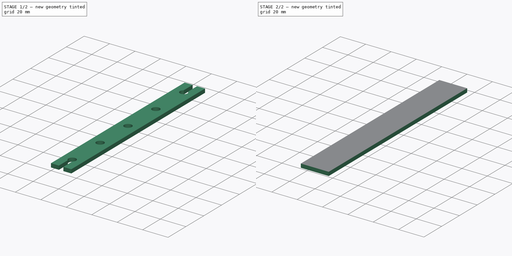
[diagram: build sequence overview — one tinted view per stage of 2, left to right]
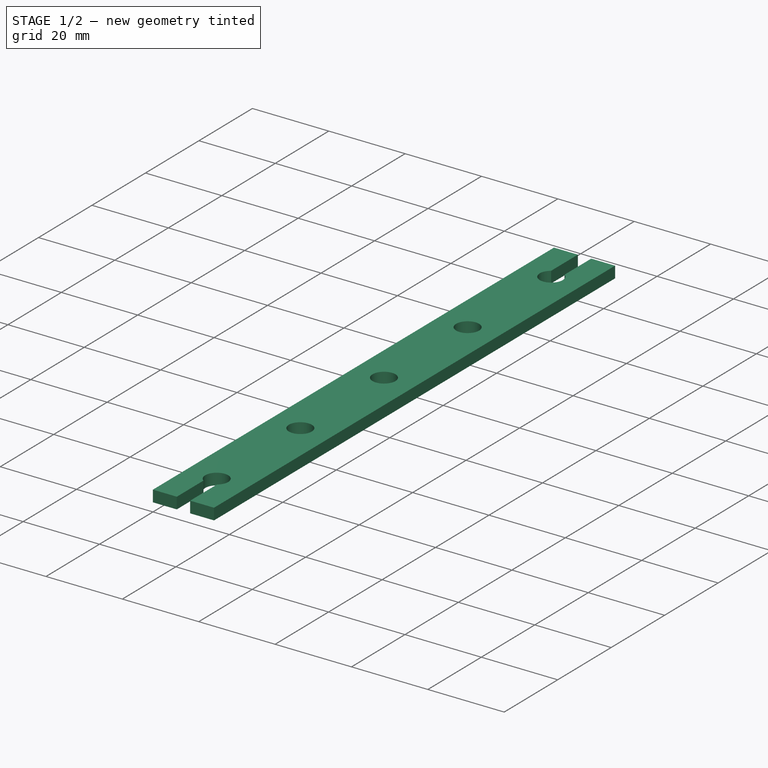
[diagram: stage 1 of 2 — iso view after this stage's code; geometry added in this stage tinted green]
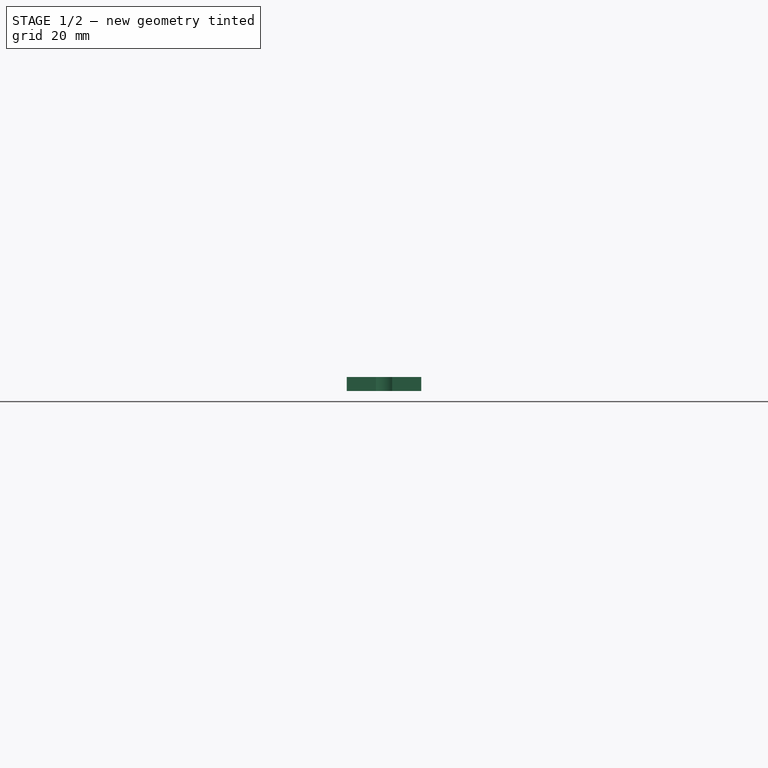
[diagram: stage 1 of 2 — front view after this stage's code; geometry added in this stage tinted green]
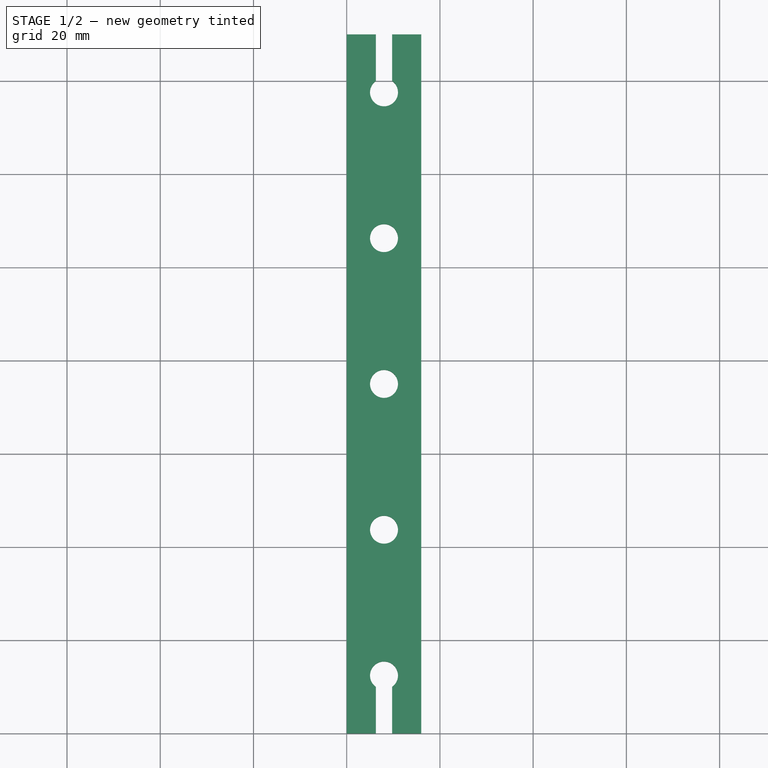
[diagram: stage 1 of 2 — top view after this stage's code; geometry added in this stage tinted green]
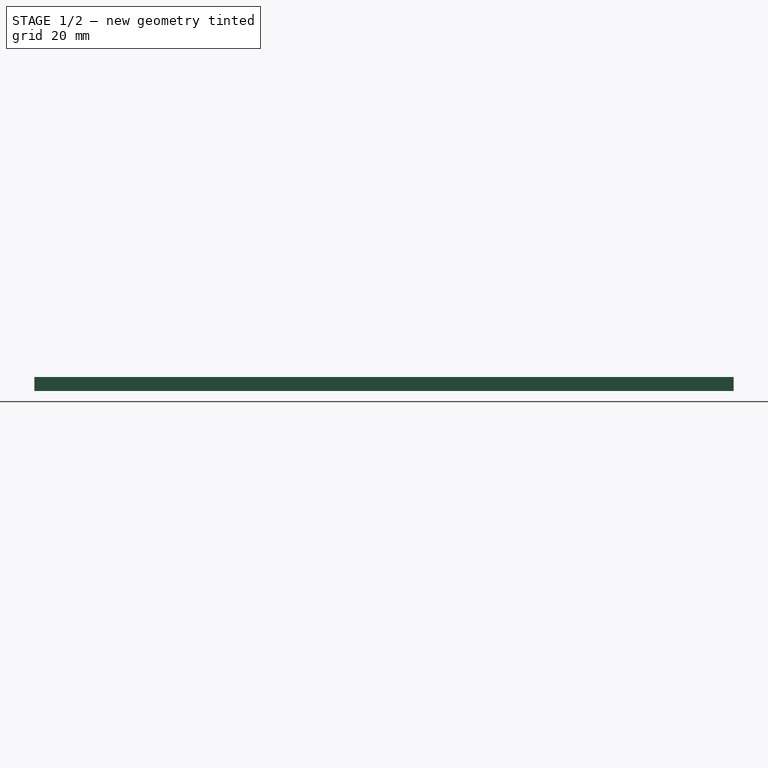
[diagram: stage 1 of 2 — right view after this stage's code; geometry added in this stage tinted green]
FCSTD DOCUMENT  (FreeCAD 0.18.4R)
Label: tram_bar
License: All rights reserved
LicenseURL: http://en.wikipedia.org/wiki/All_rights_reserved
objects: Path::FeaturePython×5, Part::FeaturePython×3, Sketcher::SketchObject×1, PartDesign::Pad×1, PartDesign::Body×1, App::Part×1, App::FeaturePython×1, App::DocumentObjectGroup×1, Path::FeatureCompoundPython×1
note: 9 computed .brp shape members not serialized (recipe doc carries the construction recipe); baked Part::Feature solids carry a one-line shape summary decoded from their .brp

FEATURE [Sketcher::SketchObject] Sketch
  MapMode = 5
  Support = -> [XY_Plane]
  sketch-geometry (15):
    g0: LineSegment StartX=-75 StartY=8 StartZ=0 EndX=75 EndY=8 EndZ=0
    g1: LineSegment StartX=75 StartY=8 StartZ=0 EndX=75 EndY=1.75 EndZ=0
    g2: LineSegment StartX=75 StartY=1.75 StartZ=0 EndX=65 EndY=1.75 EndZ=0
    g3: LineSegment StartX=65 StartY=-1.75 StartZ=0 EndX=75 EndY=-1.75 EndZ=0
    g4: LineSegment StartX=75 StartY=-1.75 StartZ=0 EndX=75 EndY=-8 EndZ=0
    g5: LineSegment StartX=75 StartY=-8 StartZ=0 EndX=-75 EndY=-8 EndZ=0
    g6: LineSegment StartX=-75 StartY=-8 StartZ=0 EndX=-75 EndY=-1.75 EndZ=0
    g7: LineSegment StartX=-75 StartY=-1.75 StartZ=0 EndX=-65 EndY=-1.75 EndZ=0
    g8: LineSegment StartX=-65 StartY=1.75 StartZ=0 EndX=-75 EndY=1.75 EndZ=0
    g9: LineSegment StartX=-75 StartY=1.75 StartZ=0 EndX=-75 EndY=8 EndZ=0
    g10: ArcOfCircle CenterX=-62.5633 CenterY=0 CenterZ=0 NormalX=0 NormalY=0 NormalZ=1 AngleXU=0 Radius=3 StartAngle=3.76442 EndAngle=8.80195
    g11: ArcOfCircle CenterX=62.5633 CenterY=0 CenterZ=0 NormalX=0 NormalY=0 NormalZ=1 AngleXU=0 Radius=3 StartAngle=0.622827 EndAngle=5.66036
    g12: Circle CenterX=-31.2817 CenterY=0 CenterZ=0 NormalX=0 NormalY=0 NormalZ=1 AngleXU=0 Radius=3
    g13: Circle CenterX=0 CenterY=0 CenterZ=0 NormalX=0 NormalY=0 NormalZ=1 AngleXU=0 Radius=3
    g14: Circle CenterX=31.2817 CenterY=0 CenterZ=0 NormalX=0 NormalY=0 NormalZ=1 AngleXU=0 Radius=3
  constraints (40):
    c: Coincident(g0,g1)
    c: Vertical(g1)
    c: Coincident(g1,g2)
    c: Horizontal(g2)
    c: Coincident(g3,g4)
    c: Vertical(g4)
    c: Coincident(g4,g5)
    c: Coincident(g5,g6)
    c: Vertical(g6)
    c: Coincident(g6,g7)
    c: Coincident(g8,g9)
    c: Coincident(g9,g0)
    c: Vertical(g9)
    c: Coincident(g10,g8)
    c: Coincident(g10,g7)
    c: Coincident(g11,g2)
    c: Coincident(g11,g3)
    c: Equal(g11,g10)
    c: Horizontal(g3)
    c: Horizontal(g8)
    c: Horizontal(g7)
    c: Symmetric(g0,g0,g-2)
    c: Symmetric(g0,g4,g-1)
    c: Symmetric(g0,g5,g-1)
    c: Equal(g9,g6)
    c: Equal(g1,g4)
    c: PointOnObject(g11,g-1)
    c: Symmetric(g11,g10,g-2)
    c: Equal(g1,g9)
    c: Coincident(g13,g-1)
    c: Equal(g12,g13)
    c: Equal(g12,g14)
    c: Symmetric(g13,g10,g12)
    c: Symmetric(g13,g11,g14)
    c: Radius(g11) = 3
    c: Radius(g12) = 3
    c: DistanceX(g2,g2) = 10
    c: DistanceY(g4,g0) = 16
    c: DistanceX(g0,g0) = 150
    c: DistanceY(g3,g1) = 3.5
FEATURE [PartDesign::Pad] Pad
  Length = 3
  Length2 = 100
  Profile = -> Sketch
  Type = 0
FEATURE [PartDesign::Body] Body
  Group = -> [Sketch,Pad]
  Origin = -> Origin
  Tip = -> Pad
FEATURE [App::Part] Part
  Group = -> [Body]
  Origin = -> Origin001
FEATURE [Part::FeaturePython] Clone  label="Body001"  # Draft clone (typed FeaturePython)
  AttacherType = Attacher::AttachEngine3D
  Fuse = false
  Objects = -> [Body]
  Placement = pos=(8,75,0) rot=(0,0,1;1.5708rad)
  Scale = (1,1,1)
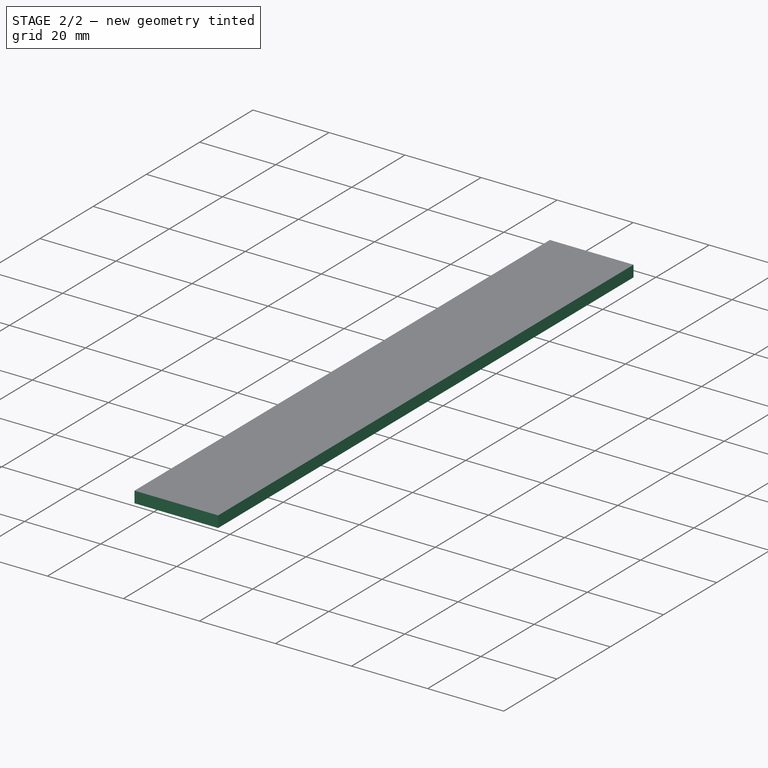
[diagram: stage 2 of 2 — iso view after this stage's code; geometry added in this stage tinted green]
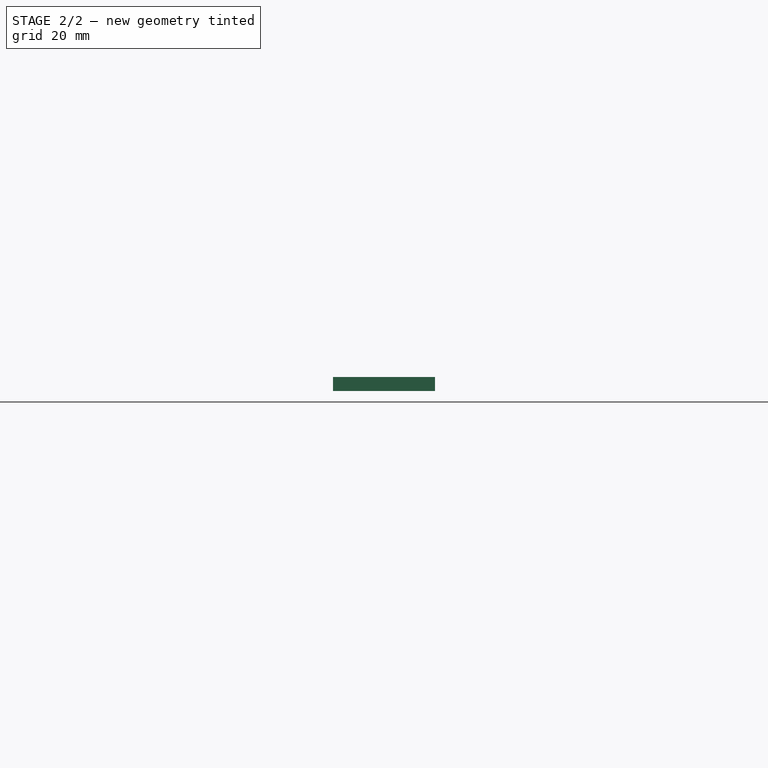
[diagram: stage 2 of 2 — front view after this stage's code; geometry added in this stage tinted green]
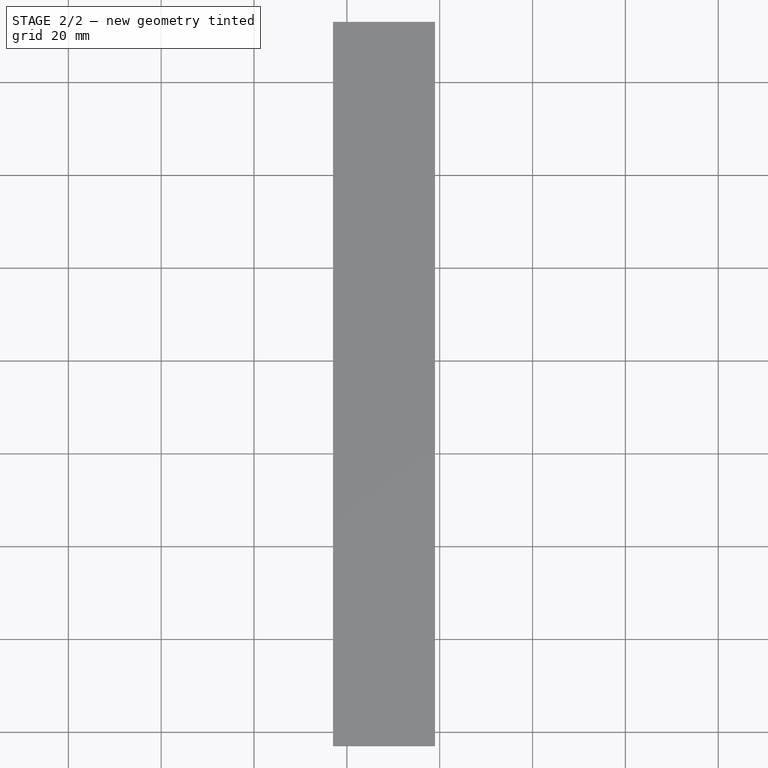
[diagram: stage 2 of 2 — top view after this stage's code; geometry added in this stage tinted green]
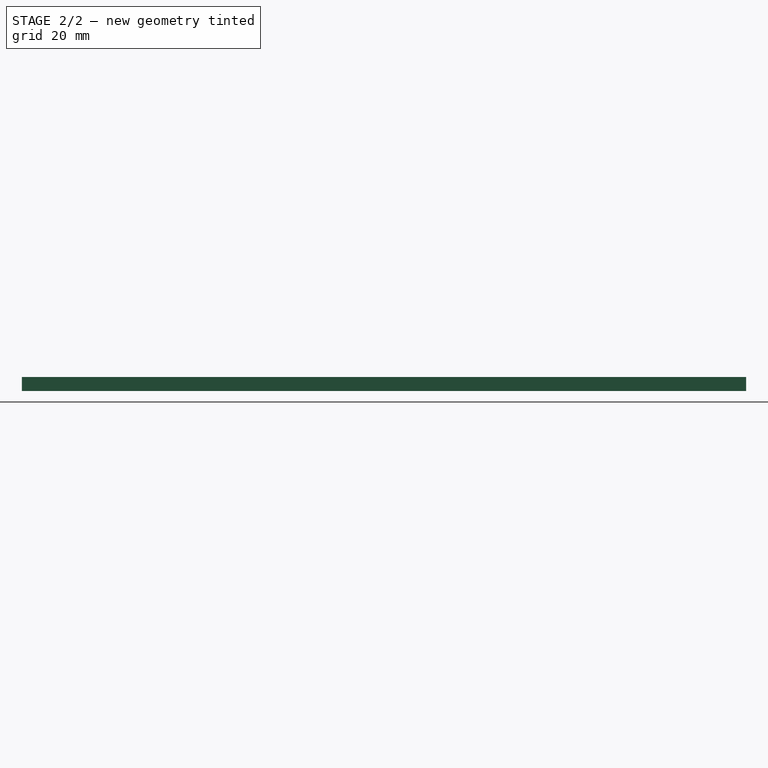
[diagram: stage 2 of 2 — right view after this stage's code; geometry added in this stage tinted green]
FEATURE [App::FeaturePython] SetupSheet  # Path/CAM operation (typed FeaturePython)
  ClearanceHeightExpression = OpStockZMax+SetupSheet.ClearanceHeightOffset
  ClearanceHeightOffset = 5
  FinalDepthExpression = -0.2mm
  HorizRapid = 33.33
  SafeHeightExpression = OpStockZMax+SetupSheet.SafeHeightOffset
  SafeHeightOffset = 3
  StartDepthExpression = 3.2mm
  StepDownExpression = 0.3
  VertRapid = 33.33
FEATURE [Part::FeaturePython] Clone001  label="Model-Body001"  # Draft clone (typed FeaturePython)
  AttacherType = Attacher::AttachEngine3D
  Fuse = false
  Objects = -> [Clone]
  PathResource = Model
  Placement = pos=(8,75,0) rot=(0,0,1;1.5708rad)
  Scale = (1,1,1)
FEATURE [App::DocumentObjectGroup] Model
  Group = -> [Clone001]
FEATURE [Part::FeaturePython] Stock  # WARN: FeaturePython — macro-defined, semantics opaque (R4)
  Base = -> Model
  ExtXneg = 3
  ExtXpos = 3
  ExtYneg = 3
  ExtYpos = 3
  ExtZneg = 0
  ExtZpos = 0
  Placement = pos=(-1.8e-15,0,0) rot=(0,0,1;0rad)
  StockType = FromBase
FEATURE [Path::FeaturePython] T3__AluminiumMill  label="T3: AluminiumMill"  # Path/CAM operation (typed FeaturePython)
  HorizFeed = 13.3333
  HorizRapid = 0
  SpindleDir = 0
  SpindleSpeed = 17000
  ToolNumber = 3
  VertFeed = 13.33
  VertRapid = 33.33
  expr: HorizFeed = 800mm / min
  expr: VertRapid = SetupSheet.VertRapid
FEATURE [Path::FeaturePython] Profile_Faces  # Path/CAM operation (typed FeaturePython)
  Active = true
  AreaParams:
    Tolerance = 1e-07
    FitArcs = True
    Simplify = False
    CleanDistance = 0.0
    Accuracy = 0.01
    Unit = 1.0
    MinArcPoints = 4
    MaxArcPoints = 100
    ClipperScale = 10000000.0
    Fill = 0
    Coplanar = 0
    Reorient = True
    Outline = False
    Explode = False
    OpenMode = 0
    Deflection = 0.01
    SubjectFill = 0
    ClipFill = 0
    Offset = 1.5
    ExtraPass = 0
    Stepover = 0.0
    LastStepover = 0.0
    JoinType = 0
    EndType = 0
    MiterLimit = 2.0
    RoundPrecision = 0.0
    PocketMode = 0
    ToolRadius = 1.0
    PocketExtraOffset = 0.0
    PocketStepover = 0.0
    PocketLastStepover = 0.0
    FromCenter = False
    Angle = 45.0
    AngleShift = 0.0
    Shift = 0.0
    Thicken = False
    SectionCount = -1
    Stepdown = 1.0
    SectionOffset = 0.0
    SectionTolerance = 1e-06
    SectionMode = 2
    Project = False
  Base = -> [Clone001]
  ClearanceHeight = 8
  Direction = 1
  FinalDepth = -0.2
  JoinType = 0
  MiterLimit = 0.1
  OffsetExtra = 0
  OpFinalDepth = 3
  OpStartDepth = 3.3
  OpStockZMax = 3
  OpStockZMin = 0
  OpToolDiameter = 3
  PathParams = {'orientation': 0, 'feedrate': 13.333333333333334, 'feedrate_v': 13.33, 'verbose': True, 'resume_height': 6.0, 'retraction': 8.0, 'return_end': True, 'preamble': False}
  SafeHeight = 6
  Side = 0
  StartDepth = 3.2
  StartPoint = (0,0,0)
  StepDown = 0.3
  ToolController = -> T3__AluminiumMill
  UseComp = true
  UseStartPoint = false
  processCircles = false
  processHoles = false
  processPerimeter = true
  expr: ClearanceHeight = OpStockZMax + SetupSheet.ClearanceHeightOffset
  expr: SafeHeight = OpStockZMax + SetupSheet.SafeHeightOffset
  expr: StepDown = 0.3
  expr: FinalDepth = -0.2mm
  expr: StartDepth = 3.2mm
FEATURE [Path::FeaturePython] TagDressup  # Path/CAM operation (typed FeaturePython)
  Angle = 45
  Base = -> Profile_Faces
  Disabled = [0,4]
  Height = 0.8
  Positions = (8) [(7.75,145,0),(-1.5,125,0),(-1.5,75,0),(-1.5,25,0),(8.25,5,0),(17.5,25,0),(17.5,75,0),(17.5,125,0)]
  Radius = 0
  SegmentationFactor = 50
  Width = 2
FEATURE [Path::FeaturePython] Profile_Faces001  # Path/CAM operation (typed FeaturePython)
  Active = true
  AreaParams:
    Tolerance = 1e-07
    FitArcs = True
    Simplify = False
    CleanDistance = 0.0
    Accuracy = 0.01
    Unit = 1.0
    MinArcPoints = 4
    MaxArcPoints = 100
    ClipperScale = 10000000.0
    Fill = 0
    Coplanar = 0
    Reorient = True
    Outline = False
    Explode = False
    OpenMode = 0
    Deflection = 0.01
    SubjectFill = 0
    ClipFill = 0
    Offset = -1.5
    ExtraPass = 0
    Stepover = 0.0
    LastStepover = 0.0
    JoinType = 0
    EndType = 0
    MiterLimit = 2.0
    RoundPrecision = 0.0
    PocketMode = 0
    ToolRadius = 1.0
    PocketExtraOffset = 0.0
    PocketStepover = 0.0
    PocketLastStepover = 0.0
    FromCenter = False
    Angle = 45.0
    AngleShift = 0.0
    Shift = 0.0
    Thicken = False
    SectionCount = -1
    Stepdown = 1.0
    SectionOffset = 0.0
    SectionTolerance = 1e-06
    SectionMode = 2
    Project = False
  Base = -> [Clone001]
  ClearanceHeight = 8
  Direction = 1
  FinalDepth = -0.2
  JoinType = 0
  MiterLimit = 0.1
  OffsetExtra = 0
  OpFinalDepth = 3
  OpStartDepth = 3.3
  OpStockZMax = 3
  OpStockZMin = 0
  OpToolDiameter = 3
  PathParams = {'orientation': 1, 'feedrate': 13.333333333333334, 'feedrate_v': 13.33, 'verbose': True, 'resume_height': 6.0, 'retraction': 8.0, 'return_end': True, 'preamble': False}
  SafeHeight = 6
  Side = 0
  StartDepth = 3.2
  StartPoint = (0,0,0)
  StepDown = 0.3
  ToolController = -> T3__AluminiumMill
  UseComp = true
  UseStartPoint = false
  processCircles = true
  processHoles = false
  processPerimeter = false
  expr: ClearanceHeight = OpStockZMax + SetupSheet.ClearanceHeightOffset
  expr: SafeHeight = OpStockZMax + SetupSheet.SafeHeightOffset
  expr: StepDown = 0.3
  expr: FinalDepth = -0.2mm
  expr: StartDepth = 3.2mm
FEATURE [Path::FeatureCompoundPython] Operations  # Path/CAM operation (typed FeaturePython)
  Group = -> [Profile_Faces001,TagDressup]
  UsePlacements = false
FEATURE [Path::FeaturePython] Job  # Path/CAM operation (typed FeaturePython)
  GeometryTolerance = 0.01
  Model = -> Model
  Operations = -> Operations
  PostProcessor = 1
  PostProcessorOutputFile = gcode/tram_bar_profile.ngc
  SetupSheet = -> SetupSheet
  Stock = -> Stock
  ToolController = -> [T3__AluminiumMill]
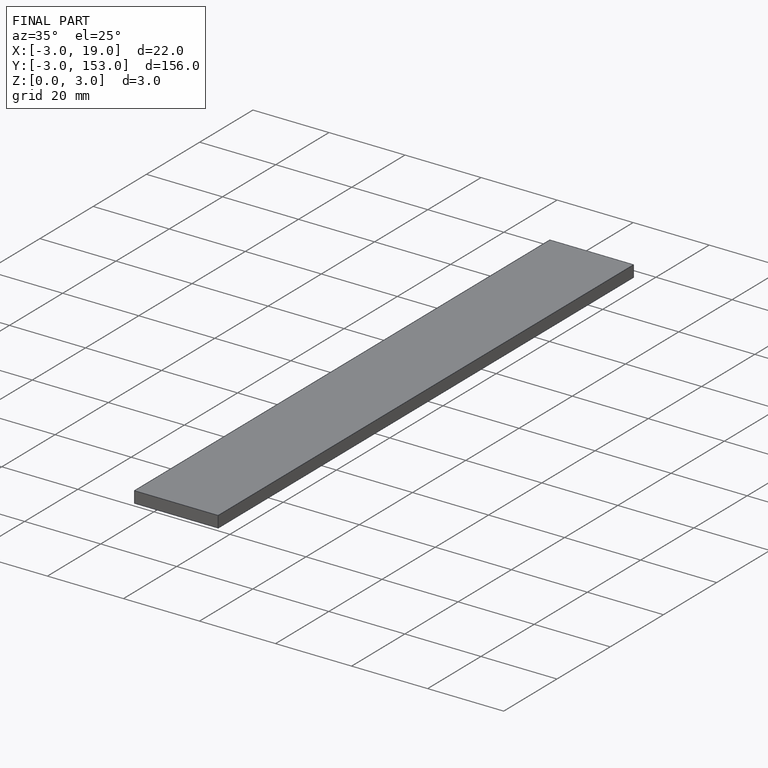
[diagram: finished part — iso view with bounding-box wireframe]
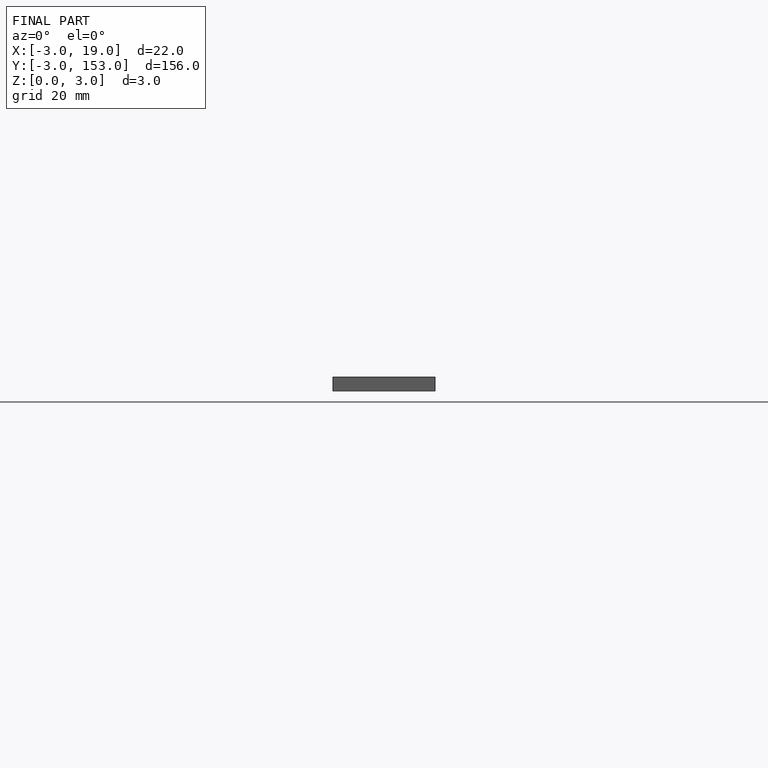
[diagram: finished part — front view with bounding-box wireframe]
